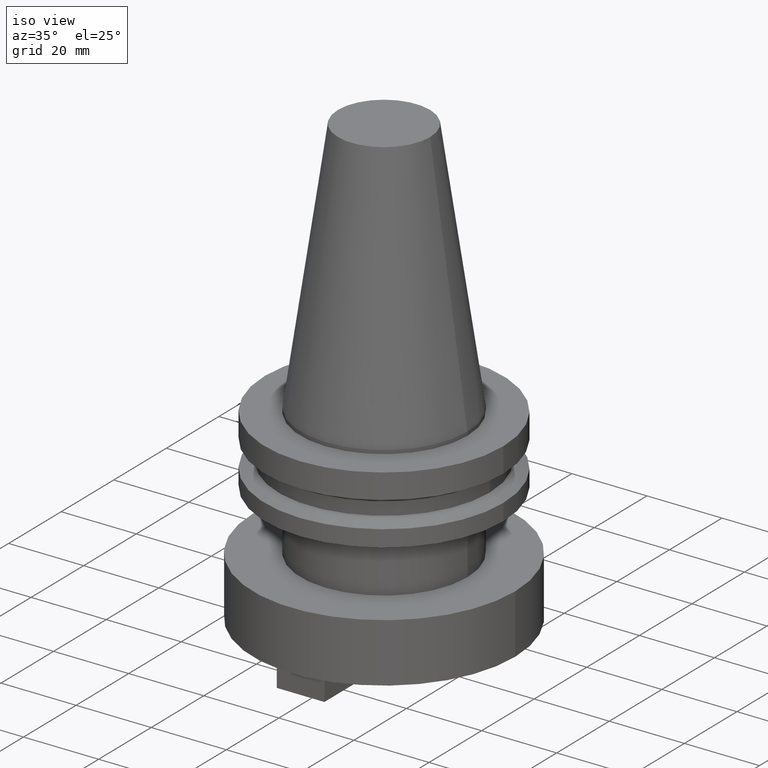
[diagram: clean part render]
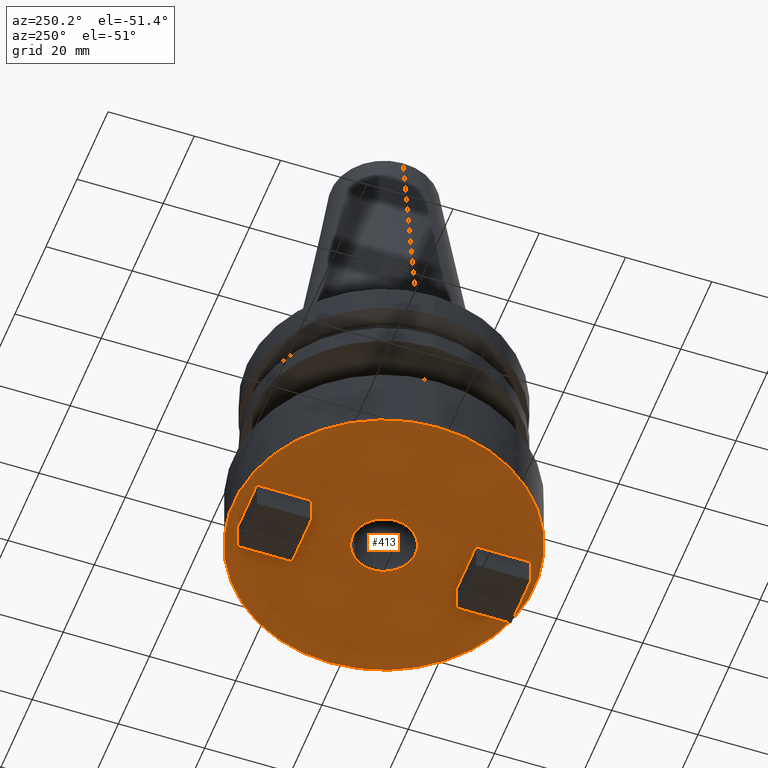
[diagram: tour spotlight — one face highlighted and labeled with its STEP entity id]
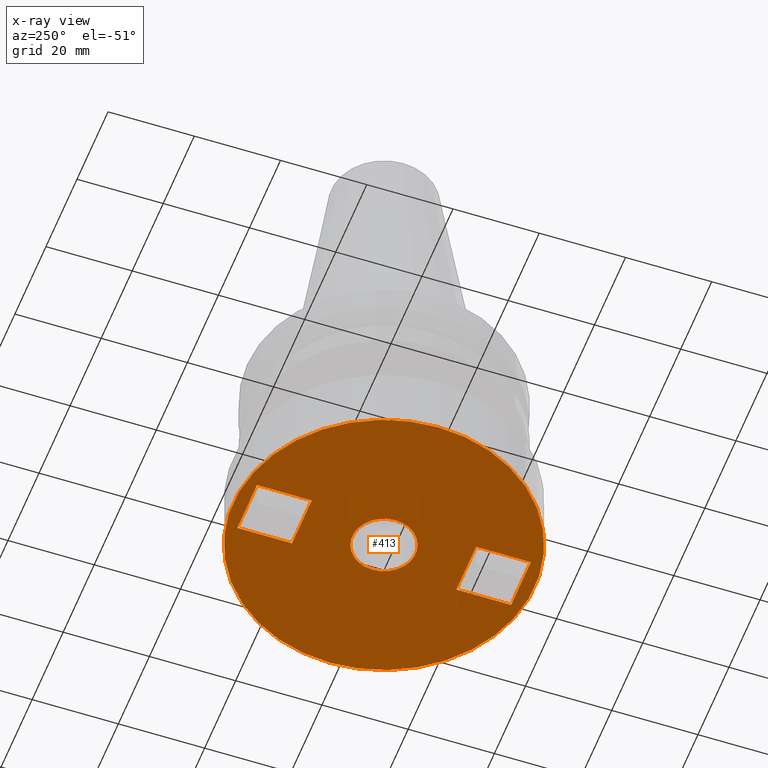
[diagram: x-ray of the same camera — body ghosted, this tour face saturated]
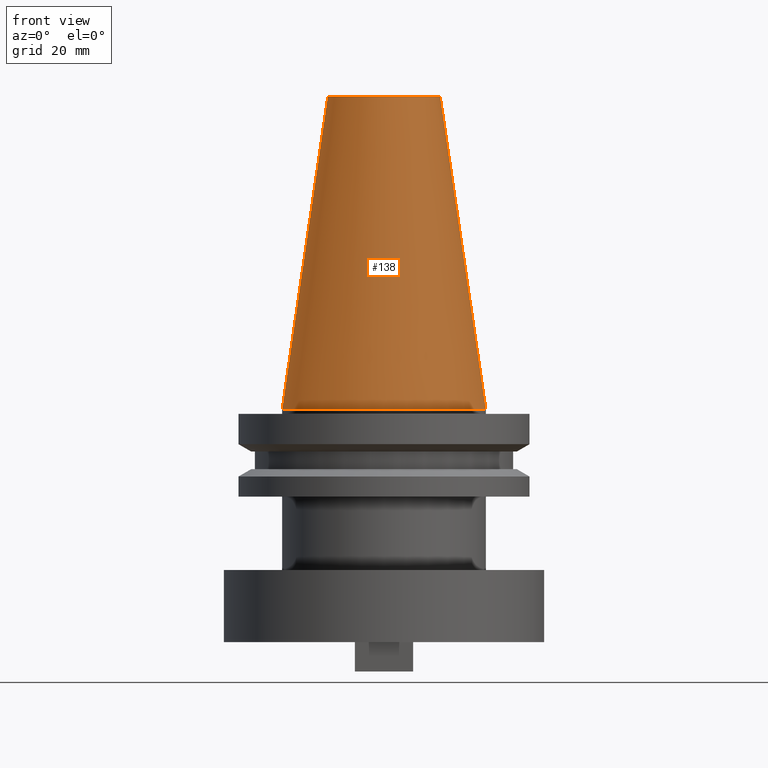
[diagram: tour spotlight — one face highlighted and labeled with its STEP entity id]
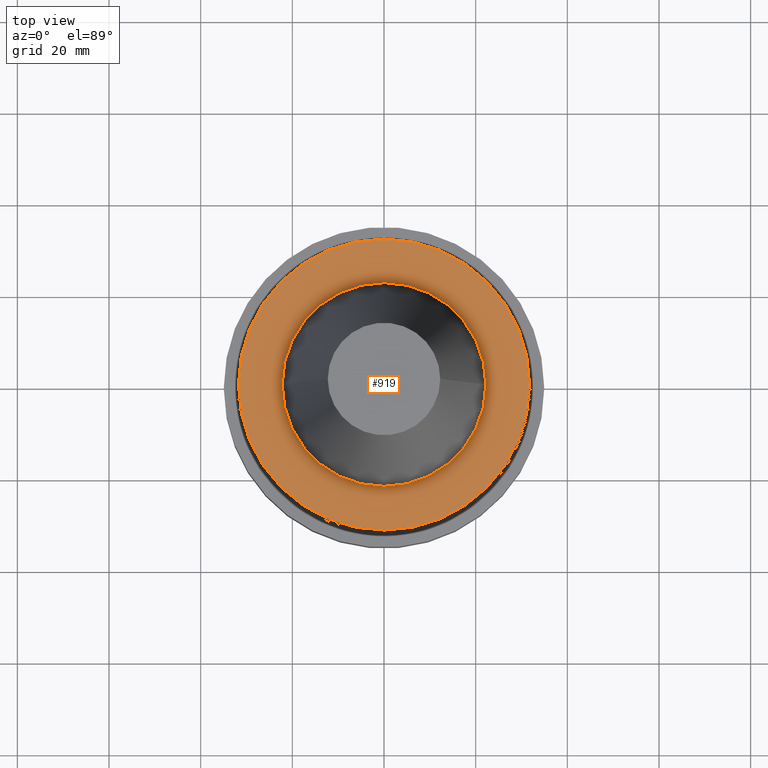
[diagram: tour spotlight — one face highlighted and labeled with its STEP entity id]
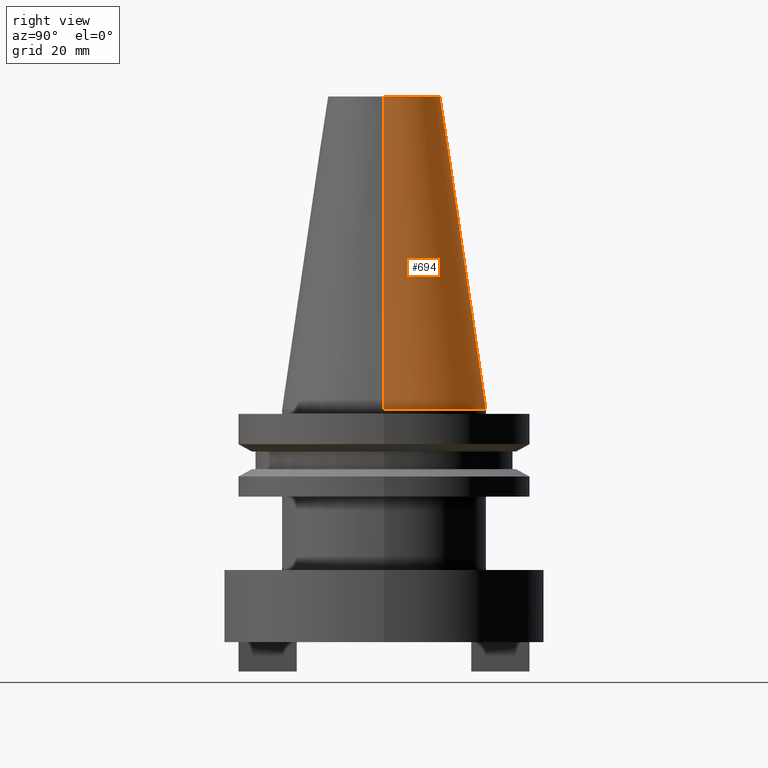
[diagram: tour spotlight — one face highlighted and labeled with its STEP entity id]
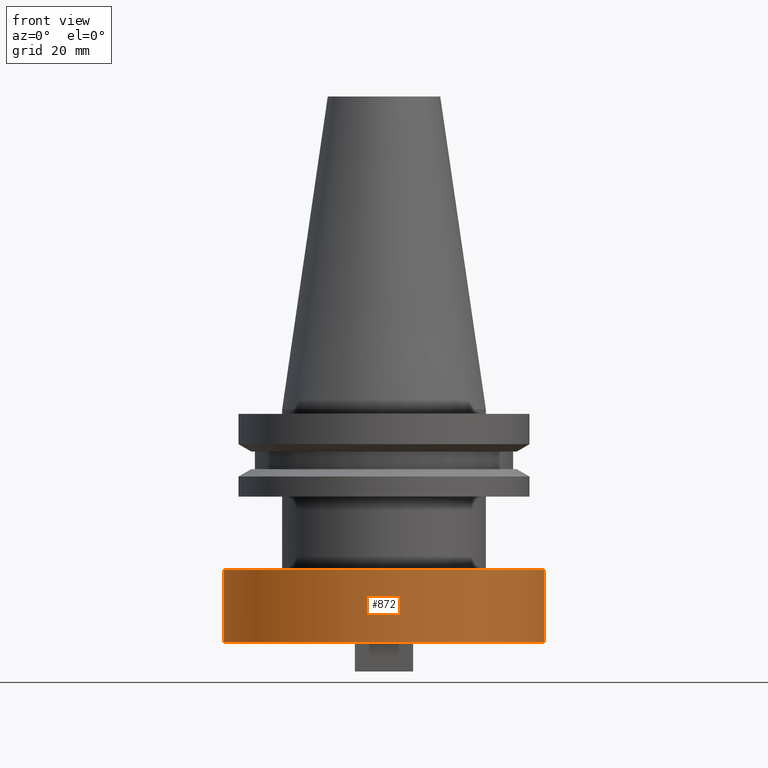
[diagram: tour spotlight — one face highlighted and labeled with its STEP entity id]
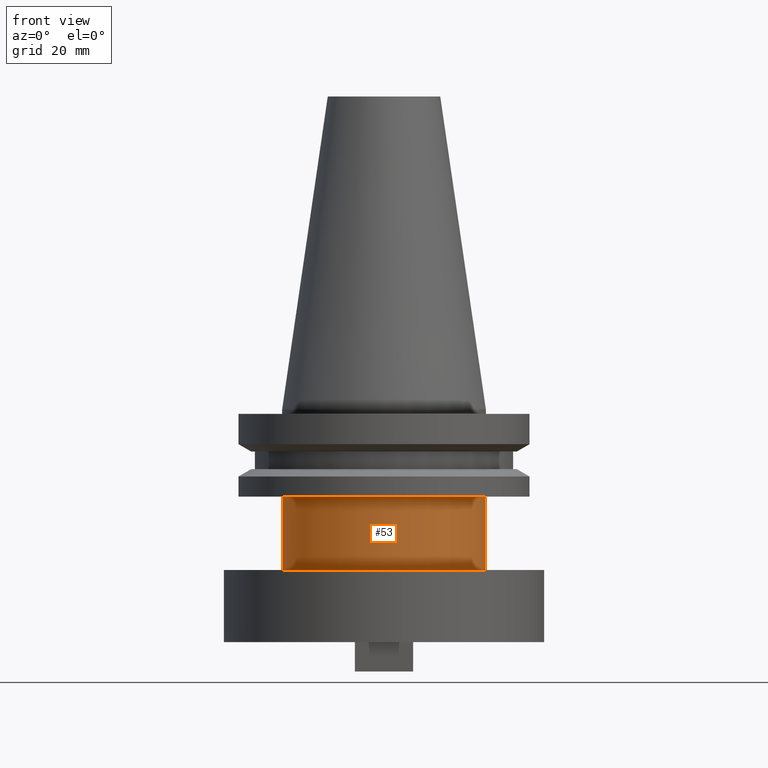
[diagram: tour spotlight — one face highlighted and labeled with its STEP entity id]
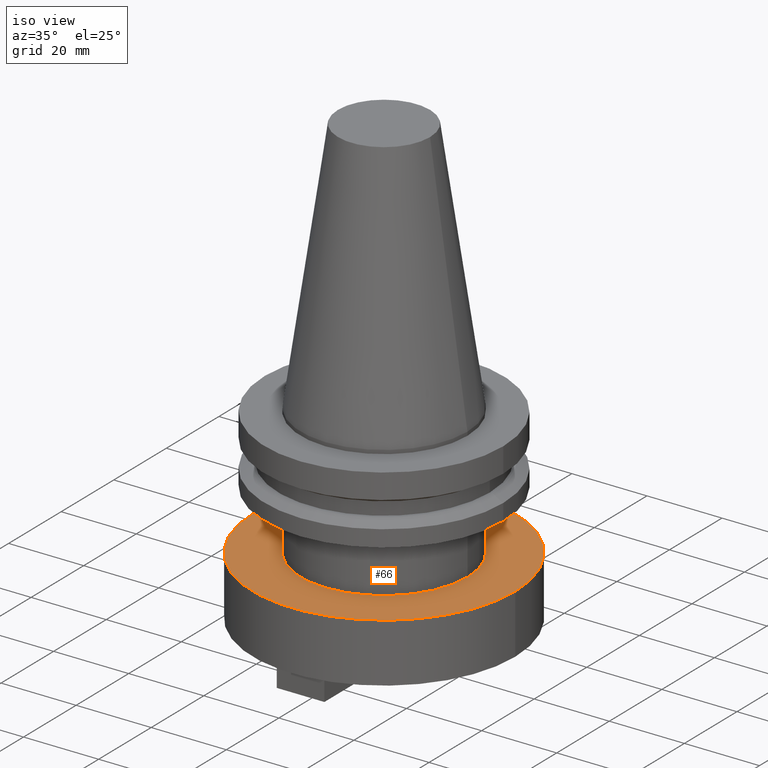
[diagram: tour spotlight — one face highlighted and labeled with its STEP entity id]
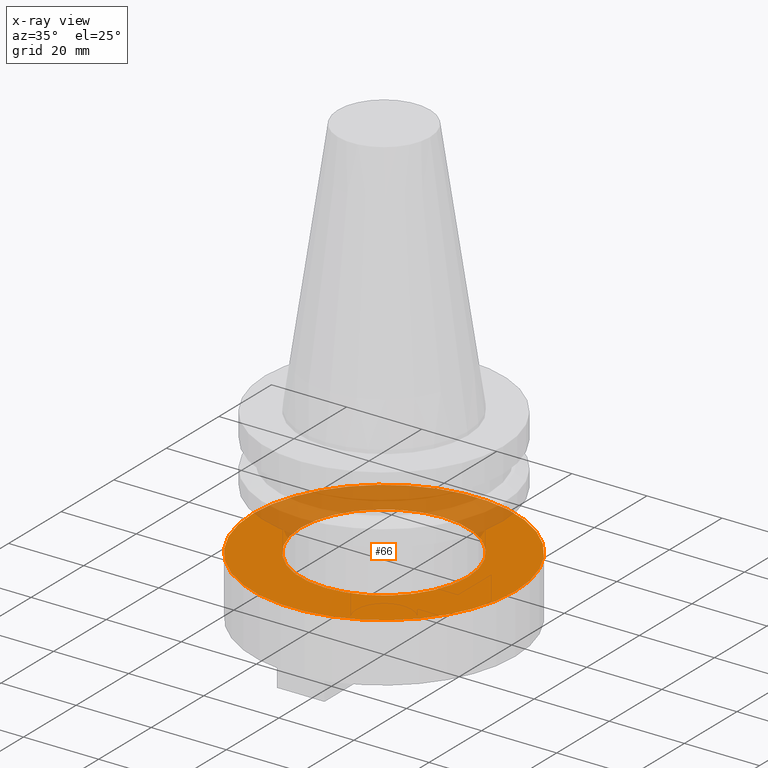
[diagram: x-ray of the same camera — body ghosted, this tour face saturated]
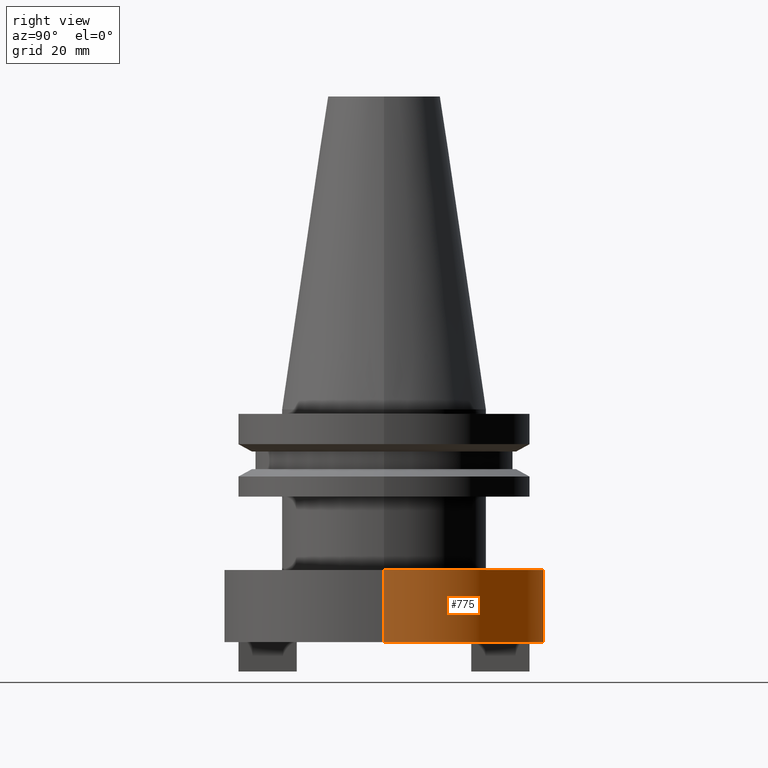
[diagram: tour spotlight — one face highlighted and labeled with its STEP entity id]
A machine part: a face-by-face anatomy tour. The part has 38 B-rep faces; the first image is the clean iso view, then the 8 largest visible faces are spotlighted one at a time (largest first), each with its STEP entity span.

Face 1 — auxiliary view, entity #413. An x-ray twin of the same camera follows (body ghosted, this face saturated) — the face is partly hidden behind the body. In plain terms, the highlighted planar face has unit normal (0, -0, 1).
Definition (entity closure, byte-faithful):
#2 = CARTESIAN_POINT ( 'NONE',  ( 6.349999999999996092, 19.05000000000000071, -50.79999999999999716 ) ) ;
#7 = ORIENTED_EDGE ( 'NONE', *, *, #664, .F. ) ;
#17 = LINE ( 'NONE', #776, #576 ) ;
#28 = DIRECTION ( 'NONE',  ( -0.000000000000000000, -0.000000000000000000, 1.000000000000000000 ) ) ;
#46 = EDGE_CURVE ( 'NONE', #741, #930, #1025, .T. ) ;
#49 = FACE_BOUND ( 'NONE', #674, .T. ) ;
#59 = EDGE_CURVE ( 'NONE', #321, #741, #1033, .T. ) ;
#60 = CARTESIAN_POINT ( 'NONE',  ( -6.350000000000003197, 31.75000000000000000, -50.79999999999999716 ) ) ;
#65 = ORIENTED_EDGE ( 'NONE', *, *, #46, .F. ) ;
#107 = CARTESIAN_POINT ( 'NONE',  ( 6.349999999999997868, -19.04999999999999716, -50.79999999999999716 ) ) ;
#108 = EDGE_CURVE ( 'NONE', #174, #273, #980, .T. ) ;
#149 = CARTESIAN_POINT ( 'NONE',  ( -34.95000000000000284, 4.280140563019999423E-15, -50.79999999999999716 ) ) ;
#174 = VERTEX_POINT ( 'NONE', #462 ) ;
#190 = CARTESIAN_POINT ( 'NONE',  ( 0.000000000000000000, 0.000000000000000000, -50.79999999999999716 ) ) ;
#191 = VECTOR ( 'NONE', #893, 1000.000000000000000 ) ;
#200 = DIRECTION ( 'NONE',  ( -1.000000000000000000, 0.000000000000000000, 0.000000000000000000 ) ) ;
#201 = VERTEX_POINT ( 'NONE', #474 ) ;
#214 = DIRECTION ( 'NONE',  ( -0.000000000000000000, -0.000000000000000000, 1.000000000000000000 ) ) ;
#234 = EDGE_CURVE ( 'NONE', #798, #513, #285, .T. ) ;
#238 = ORIENTED_EDGE ( 'NONE', *, *, #1083, .F. ) ;
#241 = DIRECTION ( 'NONE',  ( 1.000000000000000000, 0.000000000000000000, 0.000000000000000000 ) ) ;
#254 = VERTEX_POINT ( 'NONE', #375 ) ;
#256 = DIRECTION ( 'NONE',  ( -0.000000000000000000, 1.000000000000000000, -0.000000000000000000 ) ) ;
#268 = AXIS2_PLACEMENT_3D ( 'NONE', #190, #28, #543 ) ;
#273 = VERTEX_POINT ( 'NONE', #483 ) ;
#276 = CARTESIAN_POINT ( 'NONE',  ( 6.349999999999997868, -31.75000000000000000, -50.79999999999999716 ) ) ;
#285 = CIRCLE ( 'NONE', #391, 34.95000000000000284 ) ;
#292 = FACE_BOUND ( 'NONE', #721, .T. ) ;
#293 = CARTESIAN_POINT ( 'NONE',  ( 0.000000000000000000, 0.000000000000000000, -50.79999999999999716 ) ) ;
#304 = CARTESIAN_POINT ( 'NONE',  ( -6.350000000000003197, -31.75000000000000000, -50.79999999999999716 ) ) ;
#314 = ORIENTED_EDGE ( 'NONE', *, *, #997, .F. ) ;
#321 = VERTEX_POINT ( 'NONE', #913 ) ;
#327 = EDGE_LOOP ( 'NONE', ( #865, #563 ) ) ;
#330 = EDGE_CURVE ( 'NONE', #273, #174, #430, .T. ) ;
#342 = CARTESIAN_POINT ( 'NONE',  ( -6.350000000000003197, 31.75000000000000000, -50.79999999999999716 ) ) ;
#360 = VECTOR ( 'NONE', #200, 1000.000000000000000 ) ;
#367 = EDGE_CURVE ( 'NONE', #1064, #201, #416, .T. ) ;
#375 = CARTESIAN_POINT ( 'NONE',  ( -6.350000000000003197, -19.04999999999999716, -50.79999999999999716 ) ) ;
#379 = DIRECTION ( 'NONE',  ( 0.000000000000000000, -0.000000000000000000, 1.000000000000000000 ) ) ;
#391 = AXIS2_PLACEMENT_3D ( 'NONE', #293, #214, #886 ) ;
#395 = CARTESIAN_POINT ( 'NONE',  ( 0.000000000000000000, 34.95000000000000284, -50.79999999999999716 ) ) ;
#397 = CARTESIAN_POINT ( 'NONE',  ( 6.349999999999996092, 31.75000000000000000, -50.79999999999999716 ) ) ;
#402 = DIRECTION ( 'NONE',  ( 1.000000000000000000, -0.000000000000000000, -0.000000000000000000 ) ) ;
#413 = ADVANCED_FACE ( 'NONE', ( #49, #981, #799, #292 ), #571, .F. ) ;
#416 = LINE ( 'NONE', #397, #559 ) ;
#417 = LINE ( 'NONE', #1031, #631 ) ;
#427 = DIRECTION ( 'NONE',  ( 1.000000000000000000, -0.000000000000000000, -0.000000000000000000 ) ) ;
#430 = CIRCLE ( 'NONE', #998, 7.339999999999999858 ) ;
#433 = EDGE_CURVE ( 'NONE', #549, #1064, #820, .T. ) ;
#462 = CARTESIAN_POINT ( 'NONE',  ( 7.339999999999999858, 0.000000000000000000, -50.79999999999999716 ) ) ;
#474 = CARTESIAN_POINT ( 'NONE',  ( 6.349999999999996092, 31.75000000000000000, -50.79999999999999716 ) ) ;
#482 = CIRCLE ( 'NONE', #703, 34.95000000000000284 ) ;
#483 = CARTESIAN_POINT ( 'NONE',  ( -7.340000000000000746, 8.988907505741571865E-16, -50.79999999999999716 ) ) ;
#502 = DIRECTION ( 'NONE',  ( 1.000000000000000000, 0.000000000000000000, 0.000000000000000000 ) ) ;
#513 = VERTEX_POINT ( 'NONE', #149 ) ;
#518 = CARTESIAN_POINT ( 'NONE',  ( 6.349999999999996092, 19.05000000000000071, -50.79999999999999716 ) ) ;
#541 = AXIS2_PLACEMENT_3D ( 'NONE', #395, #379, #970 ) ;
#543 = DIRECTION ( 'NONE',  ( 1.000000000000000000, 0.000000000000000000, 0.000000000000000000 ) ) ;
#546 = VERTEX_POINT ( 'NONE', #518 ) ;
#549 = VERTEX_POINT ( 'NONE', #931 ) ;
#559 = VECTOR ( 'NONE', #402, 1000.000000000000000 ) ;
#563 = ORIENTED_EDGE ( 'NONE', *, *, #330, .T. ) ;
#571 = PLANE ( 'NONE',  #541 ) ;
#576 = VECTOR ( 'NONE', #1009, 1000.000000000000000 ) ;
#577 = DIRECTION ( 'NONE',  ( -0.000000000000000000, 1.000000000000000000, -0.000000000000000000 ) ) ;
#582 = VECTOR ( 'NONE', #577, 1000.000000000000000 ) ;
#587 = EDGE_LOOP ( 'NONE', ( #813, #826 ) ) ;
#618 = DIRECTION ( 'NONE',  ( 0.000000000000000000, -1.000000000000000000, 0.000000000000000000 ) ) ;
#631 = VECTOR ( 'NONE', #427, 1000.000000000000000 ) ;
#664 = EDGE_CURVE ( 'NONE', #546, #549, #757, .T. ) ;
#673 = CARTESIAN_POINT ( 'NONE',  ( 0.000000000000000000, 0.000000000000000000, -50.79999999999999716 ) ) ;
#674 = EDGE_LOOP ( 'NONE', ( #847, #7, #862, #933 ) ) ;
#679 = DIRECTION ( 'NONE',  ( -0.000000000000000000, -0.000000000000000000, 1.000000000000000000 ) ) ;
#695 = CARTESIAN_POINT ( 'NONE',  ( 6.349999999999997868, -31.75000000000000711, -50.79999999999999716 ) ) ;
#703 = AXIS2_PLACEMENT_3D ( 'NONE', #673, #812, #502 ) ;
#713 = CARTESIAN_POINT ( 'NONE',  ( 34.95000000000000284, 0.000000000000000000, -50.79999999999999716 ) ) ;
#721 = EDGE_LOOP ( 'NONE', ( #238, #65, #855, #314 ) ) ;
#741 = VERTEX_POINT ( 'NONE', #695 ) ;
#757 = LINE ( 'NONE', #2, #191 ) ;
#776 = CARTESIAN_POINT ( 'NONE',  ( 6.349999999999996092, 31.75000000000000000, -50.79999999999999716 ) ) ;
#798 = VERTEX_POINT ( 'NONE', #713 ) ;
#799 = FACE_BOUND ( 'NONE', #327, .T. ) ;
#812 = DIRECTION ( 'NONE',  ( -0.000000000000000000, -0.000000000000000000, 1.000000000000000000 ) ) ;
#813 = ORIENTED_EDGE ( 'NONE', *, *, #234, .F. ) ;
#820 = LINE ( 'NONE', #60, #582 ) ;
#826 = ORIENTED_EDGE ( 'NONE', *, *, #857, .F. ) ;
#846 = CARTESIAN_POINT ( 'NONE',  ( -6.350000000000003197, -19.04999999999999716, -50.79999999999999716 ) ) ;
#847 = ORIENTED_EDGE ( 'NONE', *, *, #433, .F. ) ;
#855 = ORIENTED_EDGE ( 'NONE', *, *, #59, .F. ) ;
#857 = EDGE_CURVE ( 'NONE', #513, #798, #482, .T. ) ;
#862 = ORIENTED_EDGE ( 'NONE', *, *, #1037, .F. ) ;
#865 = ORIENTED_EDGE ( 'NONE', *, *, #108, .T. ) ;
#886 = DIRECTION ( 'NONE',  ( 1.000000000000000000, 0.000000000000000000, 0.000000000000000000 ) ) ;
#893 = DIRECTION ( 'NONE',  ( -1.000000000000000000, 0.000000000000000000, 0.000000000000000000 ) ) ;
#913 = CARTESIAN_POINT ( 'NONE',  ( 6.349999999999997868, -19.04999999999999716, -50.79999999999999716 ) ) ;
#930 = VERTEX_POINT ( 'NONE', #304 ) ;
#931 = CARTESIAN_POINT ( 'NONE',  ( -6.350000000000003197, 19.05000000000000071, -50.79999999999999716 ) ) ;
#933 = ORIENTED_EDGE ( 'NONE', *, *, #367, .F. ) ;
#943 = LINE ( 'NONE', #846, #1079 ) ;
#962 = VECTOR ( 'NONE', #618, 1000.000000000000000 ) ;
#970 = DIRECTION ( 'NONE',  ( 1.000000000000000000, 0.000000000000000000, 0.000000000000000000 ) ) ;
#980 = CIRCLE ( 'NONE', #268, 7.339999999999999858 ) ;
#981 = FACE_OUTER_BOUND ( 'NONE', #587, .T. ) ;
#997 = EDGE_CURVE ( 'NONE', #254, #321, #417, .T. ) ;
#998 = AXIS2_PLACEMENT_3D ( 'NONE', #1078, #679, #241 ) ;
#1009 = DIRECTION ( 'NONE',  ( 0.000000000000000000, -1.000000000000000000, 0.000000000000000000 ) ) ;
#1025 = LINE ( 'NONE', #276, #360 ) ;
#1031 = CARTESIAN_POINT ( 'NONE',  ( 6.349999999999997868, -19.04999999999999716, -50.79999999999999716 ) ) ;
#1033 = LINE ( 'NONE', #107, #962 ) ;
#1037 = EDGE_CURVE ( 'NONE', #201, #546, #17, .T. ) ;
#1064 = VERTEX_POINT ( 'NONE', #342 ) ;
#1078 = CARTESIAN_POINT ( 'NONE',  ( 0.000000000000000000, 0.000000000000000000, -50.79999999999999716 ) ) ;
#1079 = VECTOR ( 'NONE', #256, 1000.000000000000000 ) ;
#1083 = EDGE_CURVE ( 'NONE', #930, #254, #943, .T. ) ;

Face 2 — front view, entity #138. In plain terms, the highlighted conical surface has half-angle 8.297 deg.
Definition (entity closure, byte-faithful):
#14 = AXIS2_PLACEMENT_3D ( 'NONE', #733, #220, #973 ) ;
#73 = VECTOR ( 'NONE', #538, 999.9999999999998863 ) ;
#138 = ADVANCED_FACE ( 'NONE', ( #956 ), #450, .T. ) ;
#154 = DIRECTION ( 'NONE',  ( 1.000000000000000000, 0.000000000000000000, 0.000000000000000000 ) ) ;
#156 = ORIENTED_EDGE ( 'NONE', *, *, #259, .T. ) ;
#169 = CARTESIAN_POINT ( 'NONE',  ( 22.22500000000000142, 2.721777511104992849E-15, 0.000000000000000000 ) ) ;
#205 = DIRECTION ( 'NONE',  ( -1.000000000000000000, 0.000000000000000000, 0.000000000000000000 ) ) ;
#220 = DIRECTION ( 'NONE',  ( -0.000000000000000000, -0.000000000000000000, 1.000000000000000000 ) ) ;
#236 = DIRECTION ( 'NONE',  ( -0.000000000000000000, -0.000000000000000000, 1.000000000000000000 ) ) ;
#259 = EDGE_CURVE ( 'NONE', #1044, #1001, #597, .T. ) ;
#305 = CIRCLE ( 'NONE', #927, 12.27178102086201150 ) ;
#351 = ORIENTED_EDGE ( 'NONE', *, *, #378, .F. ) ;
#378 = EDGE_CURVE ( 'NONE', #894, #796, #305, .T. ) ;
#407 = EDGE_LOOP ( 'NONE', ( #619, #351, #1011, #156 ) ) ;
#408 = LINE ( 'NONE', #671, #954 ) ;
#437 = CARTESIAN_POINT ( 'NONE',  ( -22.22500000000000142, 0.000000000000000000, 0.000000000000000000 ) ) ;
#450 = CONICAL_SURFACE ( 'NONE', #598, 22.22500000000000142, 0.1448138465474119174 ) ;
#496 = CARTESIAN_POINT ( 'NONE',  ( -12.27178102086201150, 0.000000000000000000, 68.25000000000000000 ) ) ;
#538 = DIRECTION ( 'NONE',  ( -0.1443082272672999711, 0.000000000000000000, -0.9895327864921755756 ) ) ;
#597 = CIRCLE ( 'NONE', #14, 22.22500000000000142 ) ;
#598 = AXIS2_PLACEMENT_3D ( 'NONE', #1053, #636, #205 ) ;
#609 = CARTESIAN_POINT ( 'NONE',  ( 12.27178102086201150, 2.112318622904291439E-15, 68.25000000000000000 ) ) ;
#619 = ORIENTED_EDGE ( 'NONE', *, *, #644, .F. ) ;
#636 = DIRECTION ( 'NONE',  ( 0.000000000000000000, 0.000000000000000000, -1.000000000000000000 ) ) ;
#644 = EDGE_CURVE ( 'NONE', #796, #1001, #408, .T. ) ;
#671 = CARTESIAN_POINT ( 'NONE',  ( 22.22500000000000142, 2.721777511104992849E-15, 0.000000000000000000 ) ) ;
#691 = CARTESIAN_POINT ( 'NONE',  ( -22.22500000000000142, 0.000000000000000000, 0.000000000000000000 ) ) ;
#733 = CARTESIAN_POINT ( 'NONE',  ( 0.000000000000000000, 0.000000000000000000, 0.000000000000000000 ) ) ;
#778 = EDGE_CURVE ( 'NONE', #894, #1044, #1028, .T. ) ;
#796 = VERTEX_POINT ( 'NONE', #609 ) ;
#894 = VERTEX_POINT ( 'NONE', #496 ) ;
#927 = AXIS2_PLACEMENT_3D ( 'NONE', #999, #236, #154 ) ;
#954 = VECTOR ( 'NONE', #1003, 999.9999999999998863 ) ;
#956 = FACE_OUTER_BOUND ( 'NONE', #407, .T. ) ;
#973 = DIRECTION ( 'NONE',  ( 1.000000000000000000, 0.000000000000000000, 0.000000000000000000 ) ) ;
#999 = CARTESIAN_POINT ( 'NONE',  ( 0.000000000000000000, 0.000000000000000000, 68.25000000000000000 ) ) ;
#1001 = VERTEX_POINT ( 'NONE', #169 ) ;
#1003 = DIRECTION ( 'NONE',  ( 0.1443082272672999711, 1.767266086135276757E-17, -0.9895327864921755756 ) ) ;
#1011 = ORIENTED_EDGE ( 'NONE', *, *, #778, .T. ) ;
#1028 = LINE ( 'NONE', #437, #73 ) ;
#1044 = VERTEX_POINT ( 'NONE', #691 ) ;
#1053 = CARTESIAN_POINT ( 'NONE',  ( 0.000000000000000000, 0.000000000000000000, 0.000000000000000000 ) ) ;

Face 3 — top view, entity #919. In plain terms, the highlighted planar face has unit normal (0, 0, -1).
Definition (entity closure, byte-faithful):
#11 = AXIS2_PLACEMENT_3D ( 'NONE', #1024, #86, #704 ) ;
#39 = CARTESIAN_POINT ( 'NONE',  ( 0.000000000000000000, 0.000000000000000000, -1.000000000000000888 ) ) ;
#86 = DIRECTION ( 'NONE',  ( -0.000000000000000000, -0.000000000000000000, 1.000000000000000000 ) ) ;
#130 = EDGE_CURVE ( 'NONE', #642, #440, #540, .T. ) ;
#133 = CARTESIAN_POINT ( 'NONE',  ( 22.22500000000000142, 0.000000000000000000, -1.000000000000000888 ) ) ;
#148 = CIRCLE ( 'NONE', #917, 22.22500000000000142 ) ;
#150 = DIRECTION ( 'NONE',  ( 1.000000000000000000, 0.000000000000000000, 0.000000000000000000 ) ) ;
#196 = ORIENTED_EDGE ( 'NONE', *, *, #323, .T. ) ;
#245 = CARTESIAN_POINT ( 'NONE',  ( 31.75000000000000000, 0.000000000000000000, -1.000000000000000888 ) ) ;
#308 = PLANE ( 'NONE',  #1027 ) ;
#323 = EDGE_CURVE ( 'NONE', #1054, #517, #633, .T. ) ;
#325 = FACE_OUTER_BOUND ( 'NONE', #808, .T. ) ;
#354 = DIRECTION ( 'NONE',  ( -0.000000000000000000, -0.000000000000000000, 1.000000000000000000 ) ) ;
#374 = AXIS2_PLACEMENT_3D ( 'NONE', #828, #1087, #150 ) ;
#393 = DIRECTION ( 'NONE',  ( 0.000000000000000000, 0.000000000000000000, -1.000000000000000000 ) ) ;
#410 = CARTESIAN_POINT ( 'NONE',  ( 0.000000000000000000, 31.75000000000000000, -0.9999999999999995559 ) ) ;
#440 = VERTEX_POINT ( 'NONE', #133 ) ;
#446 = EDGE_CURVE ( 'NONE', #440, #642, #148, .T. ) ;
#454 = ORIENTED_EDGE ( 'NONE', *, *, #1036, .T. ) ;
#464 = CIRCLE ( 'NONE', #11, 31.75000000000000000 ) ;
#517 = VERTEX_POINT ( 'NONE', #245 ) ;
#540 = CIRCLE ( 'NONE', #888, 22.22500000000000142 ) ;
#551 = DIRECTION ( 'NONE',  ( -0.000000000000000000, -0.000000000000000000, 1.000000000000000000 ) ) ;
#633 = CIRCLE ( 'NONE', #374, 31.75000000000000000 ) ;
#642 = VERTEX_POINT ( 'NONE', #827 ) ;
#643 = DIRECTION ( 'NONE',  ( 1.000000000000000000, 0.000000000000000000, 0.000000000000000000 ) ) ;
#653 = EDGE_LOOP ( 'NONE', ( #848, #772 ) ) ;
#654 = CARTESIAN_POINT ( 'NONE',  ( 0.000000000000000000, 0.000000000000000000, -1.000000000000000888 ) ) ;
#661 = FACE_BOUND ( 'NONE', #653, .T. ) ;
#704 = DIRECTION ( 'NONE',  ( 1.000000000000000000, 0.000000000000000000, 0.000000000000000000 ) ) ;
#772 = ORIENTED_EDGE ( 'NONE', *, *, #130, .F. ) ;
#808 = EDGE_LOOP ( 'NONE', ( #454, #196 ) ) ;
#827 = CARTESIAN_POINT ( 'NONE',  ( -22.22500000000000142, 2.721777511104992849E-15, -1.000000000000000888 ) ) ;
#828 = CARTESIAN_POINT ( 'NONE',  ( 0.000000000000000000, 0.000000000000000000, -1.000000000000000888 ) ) ;
#848 = ORIENTED_EDGE ( 'NONE', *, *, #446, .F. ) ;
#864 = DIRECTION ( 'NONE',  ( 1.000000000000000000, 0.000000000000000000, 0.000000000000000000 ) ) ;
#888 = AXIS2_PLACEMENT_3D ( 'NONE', #39, #354, #864 ) ;
#917 = AXIS2_PLACEMENT_3D ( 'NONE', #654, #551, #643 ) ;
#919 = ADVANCED_FACE ( 'NONE', ( #661, #325 ), #308, .F. ) ;
#988 = DIRECTION ( 'NONE',  ( -1.000000000000000000, 0.000000000000000000, -0.000000000000000000 ) ) ;
#1017 = CARTESIAN_POINT ( 'NONE',  ( -31.75000000000000000, 3.888253587292846476E-15, -1.000000000000000888 ) ) ;
#1024 = CARTESIAN_POINT ( 'NONE',  ( 0.000000000000000000, 0.000000000000000000, -1.000000000000000888 ) ) ;
#1027 = AXIS2_PLACEMENT_3D ( 'NONE', #410, #393, #988 ) ;
#1036 = EDGE_CURVE ( 'NONE', #517, #1054, #464, .T. ) ;
#1054 = VERTEX_POINT ( 'NONE', #1017 ) ;
#1087 = DIRECTION ( 'NONE',  ( -0.000000000000000000, -0.000000000000000000, 1.000000000000000000 ) ) ;

Face 4 — right view, entity #694. In plain terms, the highlighted conical surface has half-angle 8.297 deg.
Definition (entity closure, byte-faithful):
#1 = ORIENTED_EDGE ( 'NONE', *, *, #866, .T. ) ;
#6 = CONICAL_SURFACE ( 'NONE', #1042, 22.22500000000000142, 0.1448138465474119174 ) ;
#30 = ORIENTED_EDGE ( 'NONE', *, *, #778, .F. ) ;
#31 = CIRCLE ( 'NONE', #814, 22.22500000000000142 ) ;
#73 = VECTOR ( 'NONE', #538, 999.9999999999998863 ) ;
#93 = AXIS2_PLACEMENT_3D ( 'NONE', #267, #620, #1035 ) ;
#110 = DIRECTION ( 'NONE',  ( -1.000000000000000000, 0.000000000000000000, 0.000000000000000000 ) ) ;
#169 = CARTESIAN_POINT ( 'NONE',  ( 22.22500000000000142, 2.721777511104992849E-15, 0.000000000000000000 ) ) ;
#207 = CIRCLE ( 'NONE', #93, 12.27178102086201150 ) ;
#222 = EDGE_LOOP ( 'NONE', ( #550, #632, #1, #30 ) ) ;
#267 = CARTESIAN_POINT ( 'NONE',  ( 0.000000000000000000, 0.000000000000000000, 68.25000000000000000 ) ) ;
#318 = DIRECTION ( 'NONE',  ( 1.000000000000000000, 0.000000000000000000, 0.000000000000000000 ) ) ;
#408 = LINE ( 'NONE', #671, #954 ) ;
#437 = CARTESIAN_POINT ( 'NONE',  ( -22.22500000000000142, 0.000000000000000000, 0.000000000000000000 ) ) ;
#448 = FACE_OUTER_BOUND ( 'NONE', #222, .T. ) ;
#496 = CARTESIAN_POINT ( 'NONE',  ( -12.27178102086201150, 0.000000000000000000, 68.25000000000000000 ) ) ;
#527 = CARTESIAN_POINT ( 'NONE',  ( 0.000000000000000000, 0.000000000000000000, 0.000000000000000000 ) ) ;
#538 = DIRECTION ( 'NONE',  ( -0.1443082272672999711, 0.000000000000000000, -0.9895327864921755756 ) ) ;
#550 = ORIENTED_EDGE ( 'NONE', *, *, #835, .F. ) ;
#609 = CARTESIAN_POINT ( 'NONE',  ( 12.27178102086201150, 2.112318622904291439E-15, 68.25000000000000000 ) ) ;
#615 = DIRECTION ( 'NONE',  ( 0.000000000000000000, 0.000000000000000000, -1.000000000000000000 ) ) ;
#620 = DIRECTION ( 'NONE',  ( -0.000000000000000000, -0.000000000000000000, 1.000000000000000000 ) ) ;
#632 = ORIENTED_EDGE ( 'NONE', *, *, #644, .T. ) ;
#644 = EDGE_CURVE ( 'NONE', #796, #1001, #408, .T. ) ;
#671 = CARTESIAN_POINT ( 'NONE',  ( 22.22500000000000142, 2.721777511104992849E-15, 0.000000000000000000 ) ) ;
#691 = CARTESIAN_POINT ( 'NONE',  ( -22.22500000000000142, 0.000000000000000000, 0.000000000000000000 ) ) ;
#694 = ADVANCED_FACE ( 'NONE', ( #448 ), #6, .T. ) ;
#778 = EDGE_CURVE ( 'NONE', #894, #1044, #1028, .T. ) ;
#796 = VERTEX_POINT ( 'NONE', #609 ) ;
#814 = AXIS2_PLACEMENT_3D ( 'NONE', #1005, #1070, #318 ) ;
#835 = EDGE_CURVE ( 'NONE', #796, #894, #207, .T. ) ;
#866 = EDGE_CURVE ( 'NONE', #1001, #1044, #31, .T. ) ;
#894 = VERTEX_POINT ( 'NONE', #496 ) ;
#954 = VECTOR ( 'NONE', #1003, 999.9999999999998863 ) ;
#1001 = VERTEX_POINT ( 'NONE', #169 ) ;
#1003 = DIRECTION ( 'NONE',  ( 0.1443082272672999711, 1.767266086135276757E-17, -0.9895327864921755756 ) ) ;
#1005 = CARTESIAN_POINT ( 'NONE',  ( 0.000000000000000000, 0.000000000000000000, 0.000000000000000000 ) ) ;
#1028 = LINE ( 'NONE', #437, #73 ) ;
#1035 = DIRECTION ( 'NONE',  ( 1.000000000000000000, 0.000000000000000000, 0.000000000000000000 ) ) ;
#1042 = AXIS2_PLACEMENT_3D ( 'NONE', #527, #615, #110 ) ;
#1044 = VERTEX_POINT ( 'NONE', #691 ) ;
#1070 = DIRECTION ( 'NONE',  ( -0.000000000000000000, -0.000000000000000000, 1.000000000000000000 ) ) ;

Face 5 — front view, entity #872. In plain terms, the highlighted cylindrical surface (partial cylindrical patch) has radius 34.95 mm, axis along (-0, -0, 1).
Definition (entity closure, byte-faithful):
#10 = VECTOR ( 'NONE', #697, 1000.000000000000000 ) ;
#64 = CARTESIAN_POINT ( 'NONE',  ( 0.000000000000000000, 0.000000000000000000, 0.000000000000000000 ) ) ;
#75 = FACE_OUTER_BOUND ( 'NONE', #657, .T. ) ;
#84 = DIRECTION ( 'NONE',  ( 1.000000000000000000, 0.000000000000000000, 0.000000000000000000 ) ) ;
#106 = EDGE_CURVE ( 'NONE', #798, #537, #536, .T. ) ;
#149 = CARTESIAN_POINT ( 'NONE',  ( -34.95000000000000284, 4.280140563019999423E-15, -50.79999999999999716 ) ) ;
#151 = DIRECTION ( 'NONE',  ( 1.000000000000000000, 0.000000000000000000, 0.000000000000000000 ) ) ;
#215 = VECTOR ( 'NONE', #439, 1000.000000000000000 ) ;
#237 = LINE ( 'NONE', #586, #10 ) ;
#338 = ORIENTED_EDGE ( 'NONE', *, *, #650, .F. ) ;
#343 = ORIENTED_EDGE ( 'NONE', *, *, #106, .T. ) ;
#387 = CYLINDRICAL_SURFACE ( 'NONE', #768, 34.95000000000000995 ) ;
#439 = DIRECTION ( 'NONE',  ( -0.000000000000000000, -0.000000000000000000, 1.000000000000000000 ) ) ;
#471 = VERTEX_POINT ( 'NONE', #891 ) ;
#478 = AXIS2_PLACEMENT_3D ( 'NONE', #916, #832, #84 ) ;
#482 = CIRCLE ( 'NONE', #703, 34.95000000000000284 ) ;
#502 = DIRECTION ( 'NONE',  ( 1.000000000000000000, 0.000000000000000000, 0.000000000000000000 ) ) ;
#513 = VERTEX_POINT ( 'NONE', #149 ) ;
#515 = CIRCLE ( 'NONE', #478, 34.95000000000000995 ) ;
#536 = LINE ( 'NONE', #792, #215 ) ;
#537 = VERTEX_POINT ( 'NONE', #763 ) ;
#586 = CARTESIAN_POINT ( 'NONE',  ( -34.95000000000000995, 4.280140563020000212E-15, 0.000000000000000000 ) ) ;
#650 = EDGE_CURVE ( 'NONE', #471, #537, #515, .T. ) ;
#657 = EDGE_LOOP ( 'NONE', ( #669, #963, #343, #338 ) ) ;
#669 = ORIENTED_EDGE ( 'NONE', *, *, #990, .F. ) ;
#673 = CARTESIAN_POINT ( 'NONE',  ( 0.000000000000000000, 0.000000000000000000, -50.79999999999999716 ) ) ;
#697 = DIRECTION ( 'NONE',  ( -0.000000000000000000, -0.000000000000000000, 1.000000000000000000 ) ) ;
#703 = AXIS2_PLACEMENT_3D ( 'NONE', #673, #812, #502 ) ;
#713 = CARTESIAN_POINT ( 'NONE',  ( 34.95000000000000284, 0.000000000000000000, -50.79999999999999716 ) ) ;
#734 = DIRECTION ( 'NONE',  ( -0.000000000000000000, -0.000000000000000000, 1.000000000000000000 ) ) ;
#763 = CARTESIAN_POINT ( 'NONE',  ( 34.95000000000000995, 0.000000000000000000, -35.04999999999999716 ) ) ;
#768 = AXIS2_PLACEMENT_3D ( 'NONE', #64, #734, #151 ) ;
#792 = CARTESIAN_POINT ( 'NONE',  ( 34.95000000000000995, 0.000000000000000000, 0.000000000000000000 ) ) ;
#798 = VERTEX_POINT ( 'NONE', #713 ) ;
#812 = DIRECTION ( 'NONE',  ( -0.000000000000000000, -0.000000000000000000, 1.000000000000000000 ) ) ;
#832 = DIRECTION ( 'NONE',  ( -0.000000000000000000, -0.000000000000000000, 1.000000000000000000 ) ) ;
#857 = EDGE_CURVE ( 'NONE', #513, #798, #482, .T. ) ;
#872 = ADVANCED_FACE ( 'NONE', ( #75 ), #387, .T. ) ;
#891 = CARTESIAN_POINT ( 'NONE',  ( -34.95000000000000995, 4.280140563020000212E-15, -35.04999999999999716 ) ) ;
#916 = CARTESIAN_POINT ( 'NONE',  ( 0.000000000000000000, 0.000000000000000000, -35.04999999999999716 ) ) ;
#963 = ORIENTED_EDGE ( 'NONE', *, *, #857, .T. ) ;
#990 = EDGE_CURVE ( 'NONE', #513, #471, #237, .T. ) ;

Face 6 — front view, entity #53. In plain terms, the highlighted cylindrical surface (partial cylindrical patch) has radius 22.225 mm, axis along (-0, -0, 1).
Definition (entity closure, byte-faithful):
#3 = CARTESIAN_POINT ( 'NONE',  ( 0.000000000000000000, 0.000000000000000000, -35.04999999999999716 ) ) ;
#53 = ADVANCED_FACE ( 'NONE', ( #869 ), #623, .T. ) ;
#114 = DIRECTION ( 'NONE',  ( -0.000000000000000000, -0.000000000000000000, 1.000000000000000000 ) ) ;
#117 = DIRECTION ( 'NONE',  ( 1.000000000000000000, 0.000000000000000000, 0.000000000000000000 ) ) ;
#167 = CIRCLE ( 'NONE', #1066, 22.22500000000000142 ) ;
#176 = VERTEX_POINT ( 'NONE', #489 ) ;
#192 = VERTEX_POINT ( 'NONE', #817 ) ;
#198 = LINE ( 'NONE', #261, #457 ) ;
#227 = EDGE_CURVE ( 'NONE', #779, #291, #667, .T. ) ;
#233 = AXIS2_PLACEMENT_3D ( 'NONE', #555, #739, #386 ) ;
#246 = LINE ( 'NONE', #918, #412 ) ;
#261 = CARTESIAN_POINT ( 'NONE',  ( 22.22500000000000142, 0.000000000000000000, 68.25000000000000000 ) ) ;
#291 = VERTEX_POINT ( 'NONE', #585 ) ;
#312 = DIRECTION ( 'NONE',  ( -0.000000000000000000, -0.000000000000000000, 1.000000000000000000 ) ) ;
#332 = DIRECTION ( 'NONE',  ( 0.000000000000000000, 0.000000000000000000, -1.000000000000000000 ) ) ;
#344 = EDGE_CURVE ( 'NONE', #192, #779, #246, .T. ) ;
#376 = EDGE_CURVE ( 'NONE', #176, #192, #167, .T. ) ;
#377 = ORIENTED_EDGE ( 'NONE', *, *, #227, .F. ) ;
#386 = DIRECTION ( 'NONE',  ( 1.000000000000000000, 0.000000000000000000, 0.000000000000000000 ) ) ;
#412 = VECTOR ( 'NONE', #312, 1000.000000000000000 ) ;
#456 = CARTESIAN_POINT ( 'NONE',  ( 0.000000000000000000, 0.000000000000000000, 68.25000000000000000 ) ) ;
#457 = VECTOR ( 'NONE', #114, 1000.000000000000000 ) ;
#489 = CARTESIAN_POINT ( 'NONE',  ( 22.22500000000000142, 0.000000000000000000, -35.04999999999999716 ) ) ;
#492 = ORIENTED_EDGE ( 'NONE', *, *, #376, .F. ) ;
#555 = CARTESIAN_POINT ( 'NONE',  ( 0.000000000000000000, 0.000000000000000000, -19.04999999999999716 ) ) ;
#585 = CARTESIAN_POINT ( 'NONE',  ( 22.22500000000000142, 0.000000000000000000, -19.04999999999999716 ) ) ;
#600 = EDGE_LOOP ( 'NONE', ( #843, #492, #735, #377 ) ) ;
#623 = CYLINDRICAL_SURFACE ( 'NONE', #1086, 22.22500000000000142 ) ;
#667 = CIRCLE ( 'NONE', #233, 22.22500000000000142 ) ;
#725 = EDGE_CURVE ( 'NONE', #176, #291, #198, .T. ) ;
#735 = ORIENTED_EDGE ( 'NONE', *, *, #725, .T. ) ;
#739 = DIRECTION ( 'NONE',  ( -0.000000000000000000, -0.000000000000000000, 1.000000000000000000 ) ) ;
#779 = VERTEX_POINT ( 'NONE', #1023 ) ;
#817 = CARTESIAN_POINT ( 'NONE',  ( -22.22500000000000142, 2.721777511104992849E-15, -35.04999999999999716 ) ) ;
#843 = ORIENTED_EDGE ( 'NONE', *, *, #344, .F. ) ;
#869 = FACE_OUTER_BOUND ( 'NONE', #600, .T. ) ;
#908 = DIRECTION ( 'NONE',  ( -1.000000000000000000, 0.000000000000000000, 0.000000000000000000 ) ) ;
#918 = CARTESIAN_POINT ( 'NONE',  ( -22.22500000000000142, 2.721777511104992849E-15, 68.25000000000000000 ) ) ;
#938 = DIRECTION ( 'NONE',  ( -0.000000000000000000, -0.000000000000000000, 1.000000000000000000 ) ) ;
#1023 = CARTESIAN_POINT ( 'NONE',  ( -22.22500000000000142, 2.721777511104992849E-15, -19.04999999999999716 ) ) ;
#1066 = AXIS2_PLACEMENT_3D ( 'NONE', #3, #332, #908 ) ;
#1086 = AXIS2_PLACEMENT_3D ( 'NONE', #456, #938, #117 ) ;

Face 7 — iso view, entity #66. An x-ray twin of the same camera follows (body ghosted, this face saturated) — the face is partly hidden behind the body. In plain terms, the highlighted planar face has unit normal (0, 0, -1).
Definition (entity closure, byte-faithful):
#3 = CARTESIAN_POINT ( 'NONE',  ( 0.000000000000000000, 0.000000000000000000, -35.04999999999999716 ) ) ;
#42 = FACE_OUTER_BOUND ( 'NONE', #137, .T. ) ;
#48 = ORIENTED_EDGE ( 'NONE', *, *, #969, .T. ) ;
#66 = ADVANCED_FACE ( 'NONE', ( #368, #42 ), #453, .F. ) ;
#69 = CARTESIAN_POINT ( 'NONE',  ( 0.000000000000000000, 0.000000000000000000, -35.04999999999999716 ) ) ;
#71 = DIRECTION ( 'NONE',  ( -0.000000000000000000, -0.000000000000000000, 1.000000000000000000 ) ) ;
#76 = ORIENTED_EDGE ( 'NONE', *, *, #376, .T. ) ;
#84 = DIRECTION ( 'NONE',  ( 1.000000000000000000, 0.000000000000000000, 0.000000000000000000 ) ) ;
#137 = EDGE_LOOP ( 'NONE', ( #278, #356 ) ) ;
#167 = CIRCLE ( 'NONE', #1066, 22.22500000000000142 ) ;
#176 = VERTEX_POINT ( 'NONE', #489 ) ;
#192 = VERTEX_POINT ( 'NONE', #817 ) ;
#232 = EDGE_LOOP ( 'NONE', ( #76, #48 ) ) ;
#252 = CIRCLE ( 'NONE', #1015, 34.95000000000000995 ) ;
#264 = DIRECTION ( 'NONE',  ( -1.000000000000000000, 0.000000000000000000, -0.000000000000000000 ) ) ;
#272 = CARTESIAN_POINT ( 'NONE',  ( 0.000000000000000000, 7.339999999999995417, -35.04999999999999716 ) ) ;
#278 = ORIENTED_EDGE ( 'NONE', *, *, #406, .T. ) ;
#332 = DIRECTION ( 'NONE',  ( 0.000000000000000000, 0.000000000000000000, -1.000000000000000000 ) ) ;
#356 = ORIENTED_EDGE ( 'NONE', *, *, #650, .T. ) ;
#368 = FACE_BOUND ( 'NONE', #232, .T. ) ;
#376 = EDGE_CURVE ( 'NONE', #176, #192, #167, .T. ) ;
#403 = DIRECTION ( 'NONE',  ( 0.000000000000000000, 0.000000000000000000, -1.000000000000000000 ) ) ;
#406 = EDGE_CURVE ( 'NONE', #537, #471, #252, .T. ) ;
#445 = AXIS2_PLACEMENT_3D ( 'NONE', #69, #403, #1080 ) ;
#453 = PLANE ( 'NONE',  #853 ) ;
#471 = VERTEX_POINT ( 'NONE', #891 ) ;
#478 = AXIS2_PLACEMENT_3D ( 'NONE', #916, #832, #84 ) ;
#481 = DIRECTION ( 'NONE',  ( 1.000000000000000000, 0.000000000000000000, 0.000000000000000000 ) ) ;
#489 = CARTESIAN_POINT ( 'NONE',  ( 22.22500000000000142, 0.000000000000000000, -35.04999999999999716 ) ) ;
#515 = CIRCLE ( 'NONE', #478, 34.95000000000000995 ) ;
#537 = VERTEX_POINT ( 'NONE', #763 ) ;
#650 = EDGE_CURVE ( 'NONE', #471, #537, #515, .T. ) ;
#685 = CIRCLE ( 'NONE', #445, 22.22500000000000142 ) ;
#737 = CARTESIAN_POINT ( 'NONE',  ( 0.000000000000000000, 0.000000000000000000, -35.04999999999999716 ) ) ;
#763 = CARTESIAN_POINT ( 'NONE',  ( 34.95000000000000995, 0.000000000000000000, -35.04999999999999716 ) ) ;
#777 = DIRECTION ( 'NONE',  ( 0.000000000000000000, 0.000000000000000000, -1.000000000000000000 ) ) ;
#817 = CARTESIAN_POINT ( 'NONE',  ( -22.22500000000000142, 2.721777511104992849E-15, -35.04999999999999716 ) ) ;
#832 = DIRECTION ( 'NONE',  ( -0.000000000000000000, -0.000000000000000000, 1.000000000000000000 ) ) ;
#853 = AXIS2_PLACEMENT_3D ( 'NONE', #272, #777, #264 ) ;
#891 = CARTESIAN_POINT ( 'NONE',  ( -34.95000000000000995, 4.280140563020000212E-15, -35.04999999999999716 ) ) ;
#908 = DIRECTION ( 'NONE',  ( -1.000000000000000000, 0.000000000000000000, 0.000000000000000000 ) ) ;
#916 = CARTESIAN_POINT ( 'NONE',  ( 0.000000000000000000, 0.000000000000000000, -35.04999999999999716 ) ) ;
#969 = EDGE_CURVE ( 'NONE', #192, #176, #685, .T. ) ;
#1015 = AXIS2_PLACEMENT_3D ( 'NONE', #737, #71, #481 ) ;
#1066 = AXIS2_PLACEMENT_3D ( 'NONE', #3, #332, #908 ) ;
#1080 = DIRECTION ( 'NONE',  ( -1.000000000000000000, 0.000000000000000000, 0.000000000000000000 ) ) ;

Face 8 — right view, entity #775. In plain terms, the highlighted cylindrical surface (partial cylindrical patch) has radius 34.95 mm, axis along (-0, -0, 1).
Definition (entity closure, byte-faithful):
#10 = VECTOR ( 'NONE', #697, 1000.000000000000000 ) ;
#20 = CARTESIAN_POINT ( 'NONE',  ( 0.000000000000000000, 0.000000000000000000, 0.000000000000000000 ) ) ;
#32 = DIRECTION ( 'NONE',  ( 1.000000000000000000, 0.000000000000000000, 0.000000000000000000 ) ) ;
#40 = ORIENTED_EDGE ( 'NONE', *, *, #234, .T. ) ;
#71 = DIRECTION ( 'NONE',  ( -0.000000000000000000, -0.000000000000000000, 1.000000000000000000 ) ) ;
#88 = EDGE_LOOP ( 'NONE', ( #40, #143, #724, #608 ) ) ;
#106 = EDGE_CURVE ( 'NONE', #798, #537, #536, .T. ) ;
#143 = ORIENTED_EDGE ( 'NONE', *, *, #990, .T. ) ;
#149 = CARTESIAN_POINT ( 'NONE',  ( -34.95000000000000284, 4.280140563019999423E-15, -50.79999999999999716 ) ) ;
#214 = DIRECTION ( 'NONE',  ( -0.000000000000000000, -0.000000000000000000, 1.000000000000000000 ) ) ;
#215 = VECTOR ( 'NONE', #439, 1000.000000000000000 ) ;
#234 = EDGE_CURVE ( 'NONE', #798, #513, #285, .T. ) ;
#237 = LINE ( 'NONE', #586, #10 ) ;
#252 = CIRCLE ( 'NONE', #1015, 34.95000000000000995 ) ;
#285 = CIRCLE ( 'NONE', #391, 34.95000000000000284 ) ;
#293 = CARTESIAN_POINT ( 'NONE',  ( 0.000000000000000000, 0.000000000000000000, -50.79999999999999716 ) ) ;
#391 = AXIS2_PLACEMENT_3D ( 'NONE', #293, #214, #886 ) ;
#406 = EDGE_CURVE ( 'NONE', #537, #471, #252, .T. ) ;
#439 = DIRECTION ( 'NONE',  ( -0.000000000000000000, -0.000000000000000000, 1.000000000000000000 ) ) ;
#471 = VERTEX_POINT ( 'NONE', #891 ) ;
#481 = DIRECTION ( 'NONE',  ( 1.000000000000000000, 0.000000000000000000, 0.000000000000000000 ) ) ;
#513 = VERTEX_POINT ( 'NONE', #149 ) ;
#536 = LINE ( 'NONE', #792, #215 ) ;
#537 = VERTEX_POINT ( 'NONE', #763 ) ;
#586 = CARTESIAN_POINT ( 'NONE',  ( -34.95000000000000995, 4.280140563020000212E-15, 0.000000000000000000 ) ) ;
#608 = ORIENTED_EDGE ( 'NONE', *, *, #106, .F. ) ;
#697 = DIRECTION ( 'NONE',  ( -0.000000000000000000, -0.000000000000000000, 1.000000000000000000 ) ) ;
#713 = CARTESIAN_POINT ( 'NONE',  ( 34.95000000000000284, 0.000000000000000000, -50.79999999999999716 ) ) ;
#724 = ORIENTED_EDGE ( 'NONE', *, *, #406, .F. ) ;
#737 = CARTESIAN_POINT ( 'NONE',  ( 0.000000000000000000, 0.000000000000000000, -35.04999999999999716 ) ) ;
#763 = CARTESIAN_POINT ( 'NONE',  ( 34.95000000000000995, 0.000000000000000000, -35.04999999999999716 ) ) ;
#774 = FACE_OUTER_BOUND ( 'NONE', #88, .T. ) ;
#775 = ADVANCED_FACE ( 'NONE', ( #774 ), #784, .T. ) ;
#784 = CYLINDRICAL_SURFACE ( 'NONE', #1073, 34.95000000000000995 ) ;
#792 = CARTESIAN_POINT ( 'NONE',  ( 34.95000000000000995, 0.000000000000000000, 0.000000000000000000 ) ) ;
#798 = VERTEX_POINT ( 'NONE', #713 ) ;
#886 = DIRECTION ( 'NONE',  ( 1.000000000000000000, 0.000000000000000000, 0.000000000000000000 ) ) ;
#891 = CARTESIAN_POINT ( 'NONE',  ( -34.95000000000000995, 4.280140563020000212E-15, -35.04999999999999716 ) ) ;
#978 = DIRECTION ( 'NONE',  ( -0.000000000000000000, -0.000000000000000000, 1.000000000000000000 ) ) ;
#990 = EDGE_CURVE ( 'NONE', #513, #471, #237, .T. ) ;
#1015 = AXIS2_PLACEMENT_3D ( 'NONE', #737, #71, #481 ) ;
#1073 = AXIS2_PLACEMENT_3D ( 'NONE', #20, #978, #32 ) ;